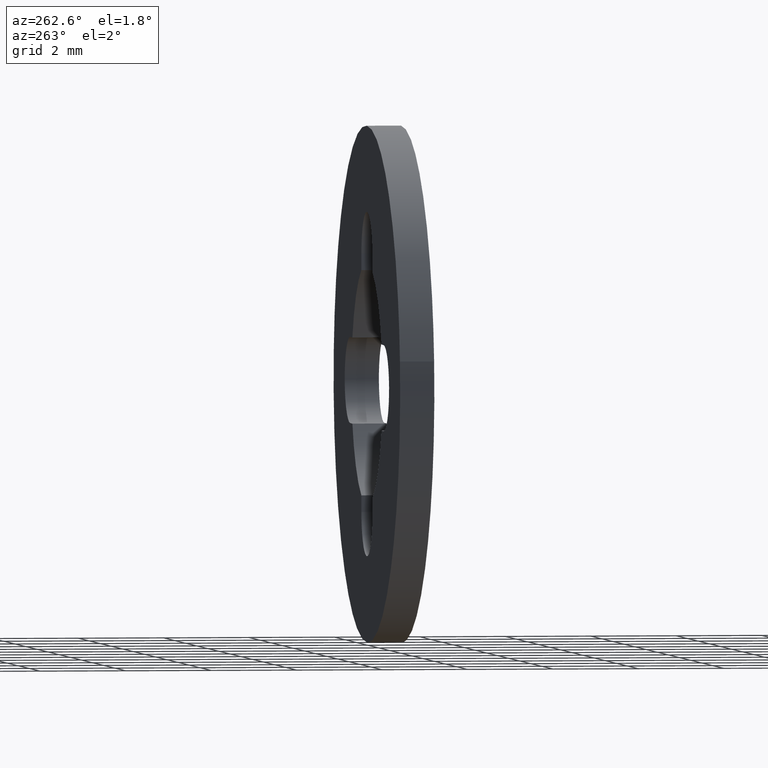
[diagram: clean part render]
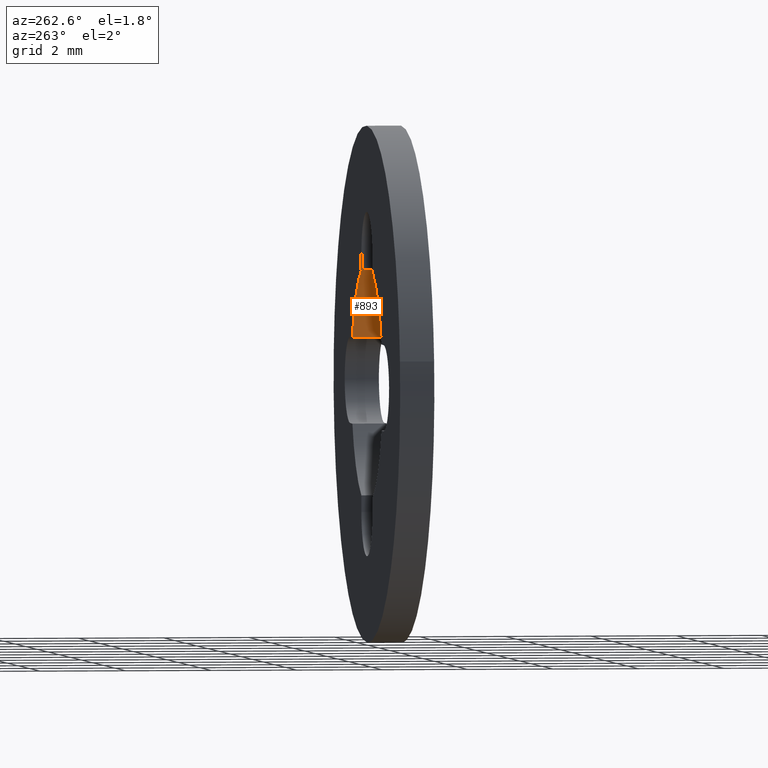
[diagram: same view with one face highlighted and labeled with its STEP entity id]
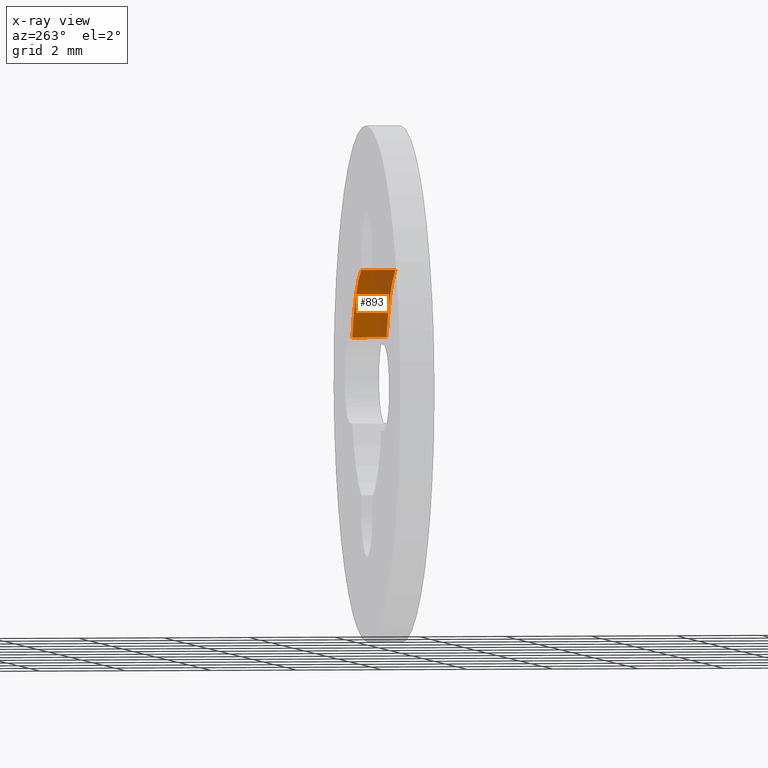
[diagram: x-ray of the same camera — body ghosted, the highlighted face saturated]
A machine part, auxiliary view. The second image highlights one B-rep face of the part: STEP entity #893.
The next image is the same camera in x-ray: the body ghosted, the highlighted face saturated — about 36% of this face is hidden behind the body in this view.
In plain terms, the highlighted face is a freeform B-spline surface patch.
Its self-contained STEP definition (entity closure, byte-faithful):
#818=CARTESIAN_POINT('',(1.000000000000018,0.0,2.615339366124394));
#819=VERTEX_POINT('',#818);
#826=CARTESIAN_POINT('',(1.000000000000018,0.800000000000023,2.615339366124394));
#827=VERTEX_POINT('',#826);
#833=CARTESIAN_POINT('',(1.000000000000018,0.800000000000023,2.615339366124394));
#834=CARTESIAN_POINT('',(1.000000000000018,0.0,2.615339366124394));
#835=QUASI_UNIFORM_CURVE('',1,(#833,#834),.UNSPECIFIED.,.F.,.U.);
#836=EDGE_CURVE('',#827,#819,#835,.T.);
#841=CARTESIAN_POINT('',(0.893549098200336,0.820000000000024,2.653595675513766));
#842=CARTESIAN_POINT('',(0.893549098200336,-0.020500000000001,2.653595675513766));
#843=CARTESIAN_POINT('',(2.210789541016130,0.820000000000024,2.210039401793512));
#844=CARTESIAN_POINT('',(2.210789541016130,-0.020500000000001,2.210039401793512));
#845=CARTESIAN_POINT('',(2.653898762762860,0.820000000000024,0.892648506975595));
#846=CARTESIAN_POINT('',(2.653898762762860,-0.020500000000001,0.892648506975595));
#854=(BOUNDED_SURFACE()B_SPLINE_SURFACE(1,2,((#841,#843,#845),(#842,#844,#846)),.UNSPECIFIED.,.F.,.F.,.U.)B_SPLINE_SURFACE_WITH_KNOTS((2,2),(3,3),(0.0,1.0),(0.0,2.626894719128480),.UNSPECIFIED.)GEOMETRIC_REPRESENTATION_ITEM()RATIONAL_B_SPLINE_SURFACE(((0.999851358034276,0.891683071967494,0.991167330352593),(0.999851358034276,0.891683071967494,0.991167330352593)))REPRESENTATION_ITEM('')SURFACE());
#855=CARTESIAN_POINT('',(2.615339366124400,0.0,1.0));
#856=VERTEX_POINT('',#855);
#857=CARTESIAN_POINT('',(2.615339366124404,0.0,1.000000000000001));
#858=CARTESIAN_POINT('',(2.168537779180712,0.0,2.168537779180696));
#859=CARTESIAN_POINT('',(1.000000000000020,0.0,2.615339366124396));
#867=(BOUNDED_CURVE()B_SPLINE_CURVE(2,(#857,#858,#859),.UNSPECIFIED.,.F.,.U.)CURVE()GEOMETRIC_REPRESENTATION_ITEM()QUASI_UNIFORM_CURVE()RATIONAL_B_SPLINE_CURVE((1.0,0.913011065027587,1.0))REPRESENTATION_ITEM(''));
#868=EDGE_CURVE('',#856,#819,#867,.T.);
#869=ORIENTED_EDGE('',*,*,#868,.T.);
#870=ORIENTED_EDGE('',*,*,#836,.F.);
#871=CARTESIAN_POINT('',(2.615339366124400,0.800000000000023,1.0));
#872=VERTEX_POINT('',#871);
#873=CARTESIAN_POINT('',(2.615339366124404,0.800000000000023,1.000000000000001));
#874=CARTESIAN_POINT('',(2.168537779180712,0.800000000000023,2.168537779180696));
#875=CARTESIAN_POINT('',(1.000000000000020,0.800000000000023,2.615339366124396));
#883=(BOUNDED_CURVE()B_SPLINE_CURVE(2,(#873,#874,#875),.UNSPECIFIED.,.F.,.U.)CURVE()GEOMETRIC_REPRESENTATION_ITEM()QUASI_UNIFORM_CURVE()RATIONAL_B_SPLINE_CURVE((1.0,0.913011065027587,1.0))REPRESENTATION_ITEM(''));
#884=EDGE_CURVE('',#872,#827,#883,.T.);
#885=ORIENTED_EDGE('',*,*,#884,.F.);
#886=CARTESIAN_POINT('',(2.615339366124400,0.800000000000023,1.0));
#887=CARTESIAN_POINT('',(2.615339366124400,0.0,1.0));
#888=QUASI_UNIFORM_CURVE('',1,(#886,#887),.UNSPECIFIED.,.F.,.U.);
#889=EDGE_CURVE('',#872,#856,#888,.T.);
#890=ORIENTED_EDGE('',*,*,#889,.T.);
#891=EDGE_LOOP('',(#869,#870,#885,#890));
#892=FACE_OUTER_BOUND('',#891,.T.);
#893=ADVANCED_FACE('',(#892),#854,.F.);